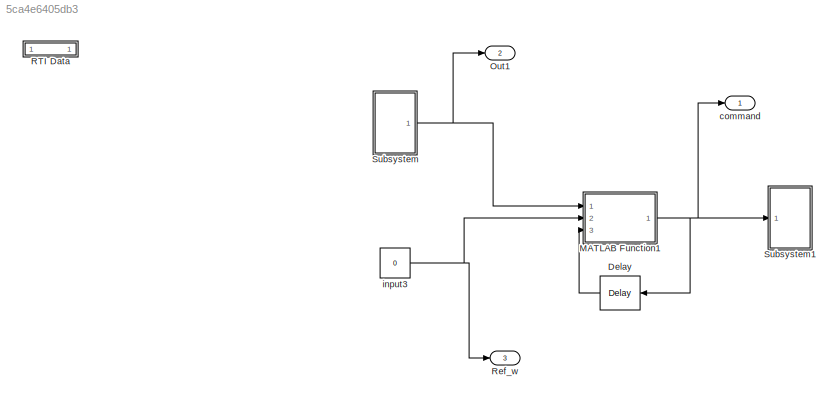
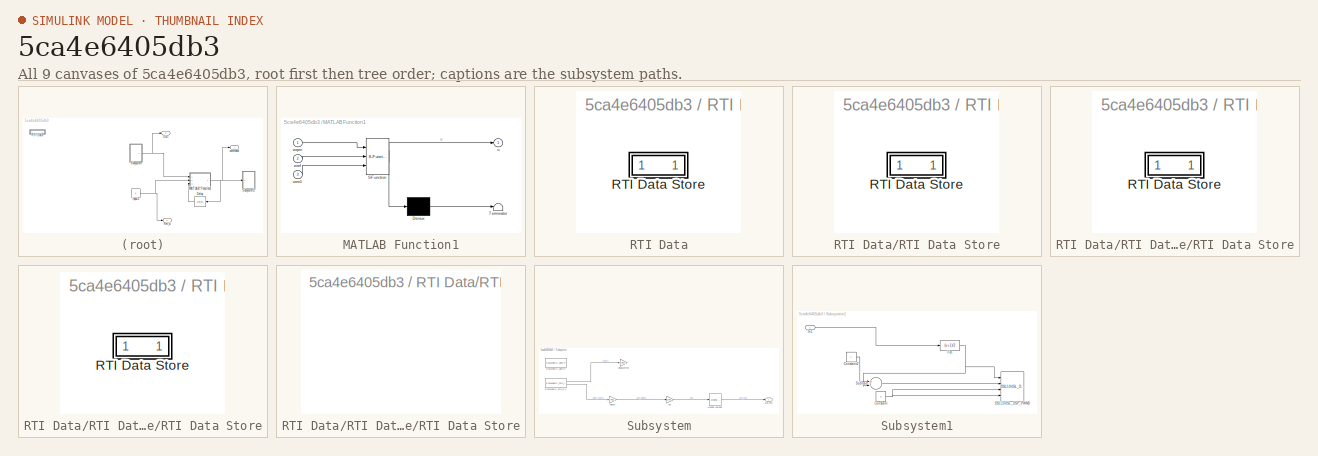
[diagram: thumbnail index - all 9 canvases of the model, root first then tree order]
MODEL slx_5ca4e6405db3
KIND model
CONFIG AbsTol = auto
CONFIG EnableMultiTasking = off
CONFIG FixedStep = 0.0001
CONFIG MaxStep = auto
CONFIG MinStep = auto
CONFIG PostLoadFcn = , if any(exist('dsrtsu_mdlpostloadfcn', 'file') == [2, 3, 6]), try dsrtsu_mdlpostloadfcn('Execute', bdroot); catch fprintf('Error in PostLoadFcn (dsrtsu_mdlpostloadfcn) for model "%s":\n %s\n', bdroot, lasterr); end, end, \n
CONFIG RelTol = 1e-3
CONFIG SampleTimeConstraint = Unconstrained
CONFIG Solver = ode1
CONFIG SolverName = ode1
CONFIG StartTime = 0.0
CONFIG StopTime = Inf
BLOCK [Delay] Delay
  DelayLength = 1
  InputPortMap = u0
  Ports = [1, 1]
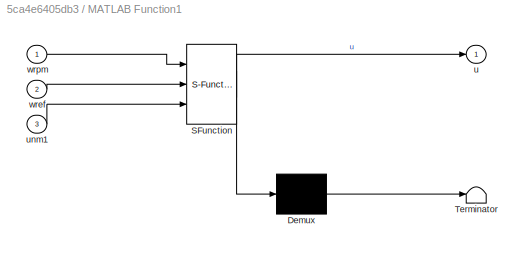
BLOCK [SubSystem] MATLAB Function1
  ErrorFcn = Stateflow.Translate.translate
  PermitHierarchicalResolution = ExplicitOnly
  Ports = [3, 1]
  RequestExecContextInheritance = off
  SFBlockType = MATLAB Function
  TreatAsAtomicUnit = on
  Variant = off
BLOCK [Demux] MATLAB Function1/ Demux 
  Outputs = 1
  Ports = [1, 1]
BLOCK [S-Function] MATLAB Function1/ SFunction 
  EnableBusSupport = on
  FunctionName = sf_sfun
  PortCounts = [3 2]
  Ports = [3, 2]
  SFcnIsStateOwnerBlock = off
  SFunctionDeploymentMode = off
  Tag = Stateflow S-Function Lab3Sim 1
BLOCK [Terminator] MATLAB Function1/ Terminator 
BLOCK [Outport] MATLAB Function1/u
  IconDisplay = Port number
BLOCK [Inport] MATLAB Function1/unm1
  IconDisplay = Port number
  Port = 3
BLOCK [Inport] MATLAB Function1/wref
  IconDisplay = Port number
  Port = 2
BLOCK [Inport] MATLAB Function1/wrpm
  IconDisplay = Port number
BLOCK [Outport] Out1
  IconDisplay = Port number
  Port = 2
BLOCK [SubSystem] RTI Data
  CopyFcn = if exist('rtidc'), try,  rtidc('DataHostBlockClbCopy', gcbh); catch, disp(['Warning: ''CopyFcn'' for RTI Data block failed: ' lasterr]); end, end,
  DeleteFcn = if exist('rtidc'), try,  rtidc('DataHostBlockClbDelete', gcbh); catch, disp(['Warning: ''DeleteFcn'' for RTI Data block failed: ' lasterr]); end, end,
  LoadFcn = if exist('rtidc'), try,  rtidc('DataHostBlockClbLoad', gcbh); catch, disp(['Warning: ''LoadFcn'' for RTI Data block failed: ' lasterr]); end, end,
  ModelCloseFcn = if exist('rtidc'), try,  rtidc('DataHostBlockClbModelClose', gcbh); catch, disp(['Warning: ''ModelCloseFcn'' for RTI Data block failed: ' lasterr]); end, end,
  NameChangeFcn = if exist('rtidc'), try,  rtidc('DataHostBlockClbNameChange', gcbh); catch, disp(['Warning: ''NameChangeFcn'' for RTI Data block failed: ' lasterr]); end, end,
  Ports = []
  PostSaveFcn = if exist('rtidc'), try,  rtidc('DataHostBlockClbPostSave', gcbh); catch, disp(['Warning: ''PostSaveFcn'' for RTI Data block failed: ' lasterr]); end, end,
  PreSaveFcn = if exist('rtidc'), try,  rtidc('DataHostBlockClbPreSave', gcbh); catch, disp(['Warning: ''PreSaveFcn'' for RTI Data block failed: ' lasterr]); end, end,
  RequestExecContextInheritance = off
  Tag = struct('RTIDataServer',struct('RTIDataServerVs','2','RTIModelDescription','struct(''main'',''Lab3Sim'',''sub'','''',''isMp'',0)'))
  Variant = off
BLOCK [SubSystem] RTI Data/RTI Data Store
  Ports = []
  RequestExecContextInheritance = off
  Tag = struct('private',struct('version',struct('dsVer',uint32(2),'dsVerCreation',uint32(2),'RTI',struct('ver','7.9','type','RTI1104')),'access',struct('type','Model','isPerm',1,'created',['07-Feb-2020 11:31:17'],'modified',['07-Feb-2020 13:24:39'],'location','')),'public',struct('main',struct('data',[]),'sub',struct('name',{{'Lab3Sim'}},'data',{{struct('TH',struct('thTaskInfo',struct('taskType',{'TIMER'...<+888ch>
  Variant = off
BLOCK [SubSystem] RTI Data/RTI Data Store/RTI Data Store
  Ports = []
  RequestExecContextInheritance = off
  Variant = off
BLOCK [SubSystem] RTI Data/RTI Data Store/RTI Data Store/RTI Data Store
  Ports = []
  RequestExecContextInheritance = off
  Variant = off
BLOCK [SubSystem] RTI Data/RTI Data Store/RTI Data Store/RTI Data Store/RTI Data Store
  Ports = []
  RequestExecContextInheritance = off
  Variant = off
BLOCK [Outport] Ref_w 
  IconDisplay = Port number
  Port = 3
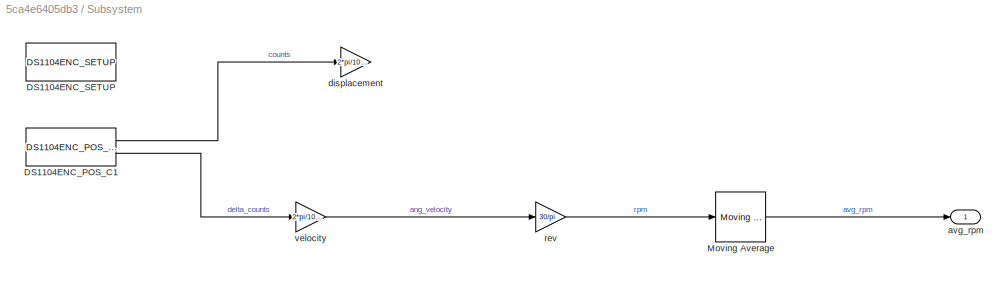
BLOCK [SubSystem] Subsystem
  Ports = [0, 1]
  RequestExecContextInheritance = off
  Variant = off
BLOCK [Reference] Subsystem/DS1104ENC_POS_C1  REF=rtilib1104/DS1104 MASTER PPC/DS1104ENC_POS_C1
  Ports = [0, 2]
  SourceBlock = rtilib1104/DS1104 MASTER PPC/DS1104ENC_POS_C1
  SourceProductName = dSPACE RTI1104
  SourceType = RTI
BLOCK [Reference] Subsystem/DS1104ENC_SETUP  REF=rtilib1104/DS1104 MASTER PPC/DS1104ENC_SETUP
  Ports = []
  SourceBlock = rtilib1104/DS1104 MASTER PPC/DS1104ENC_SETUP
  SourceProductName = dSPACE RTI1104
  SourceType = RTI
BLOCK [Reference] Subsystem/Moving Average  REF=dspstat3/Moving
Average
  Ports = [1, 1]
  SourceBlock = dspstat3/Moving\nAverage
  SourceProductBaseCode = DS
  SourceProductName = DSP System Toolbox
  SourceType = dsp.MovingAverage
BLOCK [Outport] Subsystem/avg_rpm
  IconDisplay = Port number
BLOCK [Gain] Subsystem/displacement
  Gain = 2*pi/1000
  OutDataTypeStr = Inherit: Inherit via internal rule
  ParamDataTypeStr = Inherit: Inherit via internal rule
  SaturateOnIntegerOverflow = off
BLOCK [Gain] Subsystem/rev
  Gain = 30/pi
  OutDataTypeStr = Inherit: Inherit via internal rule
  ParamDataTypeStr = Inherit: Inherit via internal rule
  SaturateOnIntegerOverflow = off
BLOCK [Gain] Subsystem/velocity
  Gain = 2*pi/1000 *(1/0.0001)
  OutDataTypeStr = Inherit: Inherit via internal rule
  ParamDataTypeStr = Inherit: Inherit via internal rule
  SaturateOnIntegerOverflow = off
BLOCK [SubSystem] Subsystem1
  Ports = [1]
  RequestExecContextInheritance = off
  Variant = off
BLOCK [Constant] Subsystem1/Constant
  Value = 0
BLOCK [Constant] Subsystem1/Constant2
BLOCK [Reference] Subsystem1/DS1104SL_DSP_PWM3  REF=rtilib1104/DS1104 SLAVE DSP/DS1104SL_DSP_PWM3
  Ports = [4]
  SourceBlock = rtilib1104/DS1104 SLAVE DSP/DS1104SL_DSP_PWM3
  SourceProductName = dSPACE RTI1104
  SourceType = RTI
BLOCK [Fcn] Subsystem1/Fcn
  Expr = (u+1)/2
BLOCK [Inport] Subsystem1/In1
  IconDisplay = Port number
BLOCK [Sum] Subsystem1/Subtract
  InputSameDT = off
  Inputs = +-
  OutDataTypeStr = Inherit: Inherit via internal rule
  Ports = [2, 1]
  SaturateOnIntegerOverflow = off
BLOCK [Outport] command 
  IconDisplay = Port number
BLOCK [Constant] input3
  Value = 0
LINE Delay:1 -> MATLAB Function1:3
NET MATLAB Function1:1 -> Delay:1, Subsystem1:1, command :1
LINE Subsystem/DS1104ENC_POS_C1:1 -> Subsystem/displacement:1
LINE Subsystem/DS1104ENC_POS_C1:2 -> Subsystem/velocity:1
LINE Subsystem/Moving Average:1 -> Subsystem/avg_rpm:1
LINE Subsystem/rev:1 -> Subsystem/Moving Average:1
LINE Subsystem/velocity:1 -> Subsystem/rev:1
LINE Subsystem1/Constant2:1 -> Subsystem1/Subtract:1
NET Subsystem1/Constant:1 -> Subsystem1/DS1104SL_DSP_PWM3:3, Subsystem1/DS1104SL_DSP_PWM3:4
NET Subsystem1/Fcn:1 -> Subsystem1/DS1104SL_DSP_PWM3:1, Subsystem1/Subtract:2
LINE Subsystem1/In1:1 -> Subsystem1/Fcn:1
LINE Subsystem1/Subtract:1 -> Subsystem1/DS1104SL_DSP_PWM3:2
NET Subsystem:1 -> MATLAB Function1:1, Out1:1
NET input3:1 -> MATLAB Function1:2, Ref_w :1
note: NET lines group one-source signal fan-out (src -> all destinations, sorted); 1:1 wires keep LINE
CHART MATLAB Function1 states=1 transitions=1
  STATE_LABEL 'eML_blk_kernel()'
  STATE_LABEL 'SCRIPT:\nfunction u = fcn(wrpm,wref, unm1)\n\nx = wref -wrpm;\nif x>0\n    u = unm1+0.0001;\nelseif x<0\n    u = unm1-0.0001;\nelse\n    u = unm1;\nend\n\nif u>1\n    u=.99;\nelseif u<-1\n    u=-.99;\nend \n\nend '
